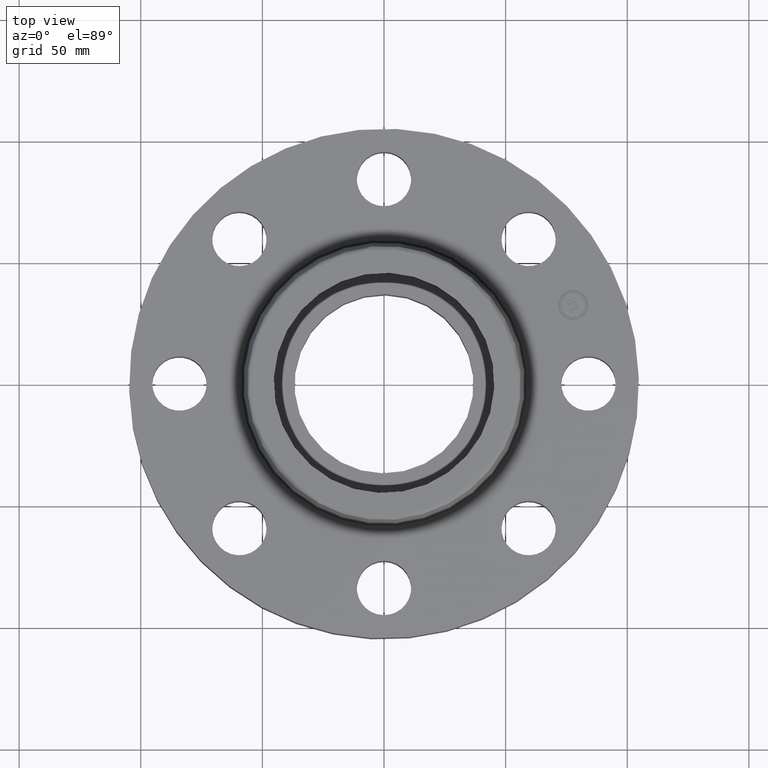
[diagram: clean part render]
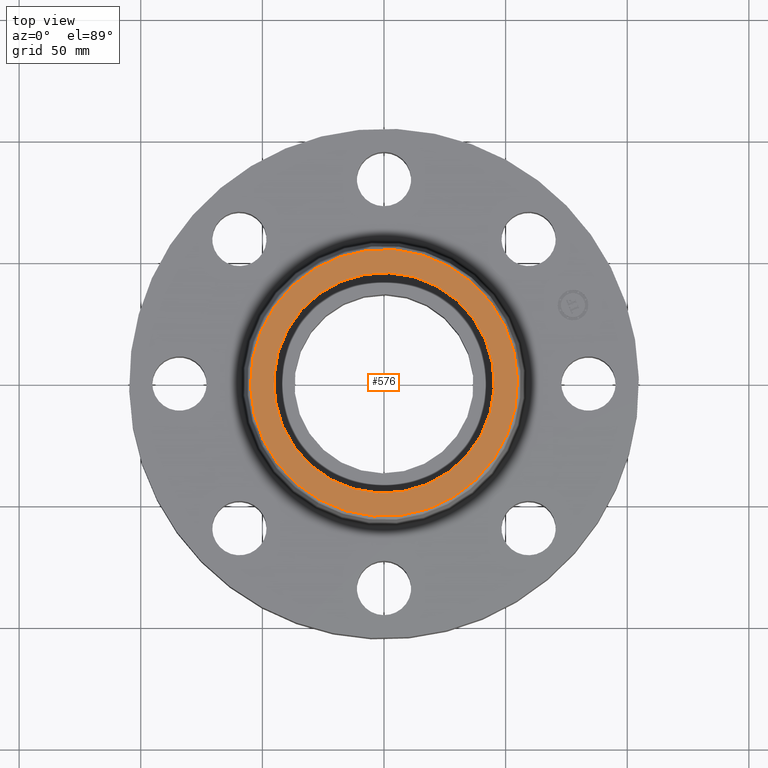
[diagram: same view with one face highlighted and labeled with its STEP entity id]
A machine part, top view. The second image highlights one B-rep face of the part: STEP entity #576.
In plain terms, the highlighted planar face has unit normal (0, 0, -1).
Its self-contained STEP definition (entity closure, byte-faithful):
#520=AXIS2_PLACEMENT_3D('Circle Axis2P3D',#518,#519,$) ;
#539=AXIS2_PLACEMENT_3D('Circle Axis2P3D',#537,#538,$) ;
#552=AXIS2_PLACEMENT_3D('Plane Axis2P3D',#549,#550,#551) ;
#560=AXIS2_PLACEMENT_3D('Circle Axis2P3D',#558,#559,$) ;
#569=AXIS2_PLACEMENT_3D('Circle Axis2P3D',#567,#568,$) ;
#515=CARTESIAN_POINT('Vertex',(1.03599587831,1.896377735,1.81000000001)) ;
#518=CARTESIAN_POINT('Axis2P3D Location',(0.,0.,1.81000000001)) ;
#522=CARTESIAN_POINT('Vertex',(-1.03599587831,-1.896377735,1.81000000001)) ;
#537=CARTESIAN_POINT('Axis2P3D Location',(0.,0.,1.81000000001)) ;
#549=CARTESIAN_POINT('Axis2P3D Location',(0.,2.16091091294,1.81000000001)) ;
#558=CARTESIAN_POINT('Axis2P3D Location',(-1.39870617276E-016,8.39223703654E-016,1.81000000001)) ;
#562=CARTESIAN_POINT('Vertex',(-1.56648487298,0.855774586412,1.81000000001)) ;
#564=CARTESIAN_POINT('Vertex',(1.56648487298,-0.855774586412,1.81000000001)) ;
#567=CARTESIAN_POINT('Axis2P3D Location',(6.99353086378E-017,0.,1.81000000001)) ;
#519=DIRECTION('Axis2P3D Direction',(0.,0.,-0.0393700787402)) ;
#538=DIRECTION('Axis2P3D Direction',(0.,0.,-0.0393700787402)) ;
#550=DIRECTION('Axis2P3D Direction',(0.,0.,-0.0393700787402)) ;
#551=DIRECTION('Axis2P3D XDirection',(0.0393700787402,0.,0.)) ;
#559=DIRECTION('Axis2P3D Direction',(0.,0.,-0.0393700787402)) ;
#568=DIRECTION('Axis2P3D Direction',(0.,0.,-0.0393700787402)) ;
#555=ORIENTED_EDGE('',*,*,#524,.F.) ;
#556=ORIENTED_EDGE('',*,*,#541,.F.) ;
#573=ORIENTED_EDGE('',*,*,#566,.T.) ;
#574=ORIENTED_EDGE('',*,*,#571,.T.) ;
#575=FACE_BOUND('',#572,.T.) ;
#576=ADVANCED_FACE('PartBody',(#557,#575),#553,.F.) ;
#521=CIRCLE('generated circle',#520,2.16091091294) ;
#540=CIRCLE('generated circle',#539,2.16091091294) ;
#561=CIRCLE('generated circle',#560,1.78500000001) ;
#570=CIRCLE('generated circle',#569,1.78500000001) ;
#524=EDGE_CURVE('',#516,#523,#521,.T.) ;
#541=EDGE_CURVE('',#523,#516,#540,.T.) ;
#566=EDGE_CURVE('',#563,#565,#561,.T.) ;
#571=EDGE_CURVE('',#565,#563,#570,.T.) ;
#554=EDGE_LOOP('',(#555,#556)) ;
#572=EDGE_LOOP('',(#573,#574)) ;
#557=FACE_OUTER_BOUND('',#554,.T.) ;
#553=PLANE('',#552) ;
#516=VERTEX_POINT('',#515) ;
#523=VERTEX_POINT('',#522) ;
#563=VERTEX_POINT('',#562) ;
#565=VERTEX_POINT('',#564) ;